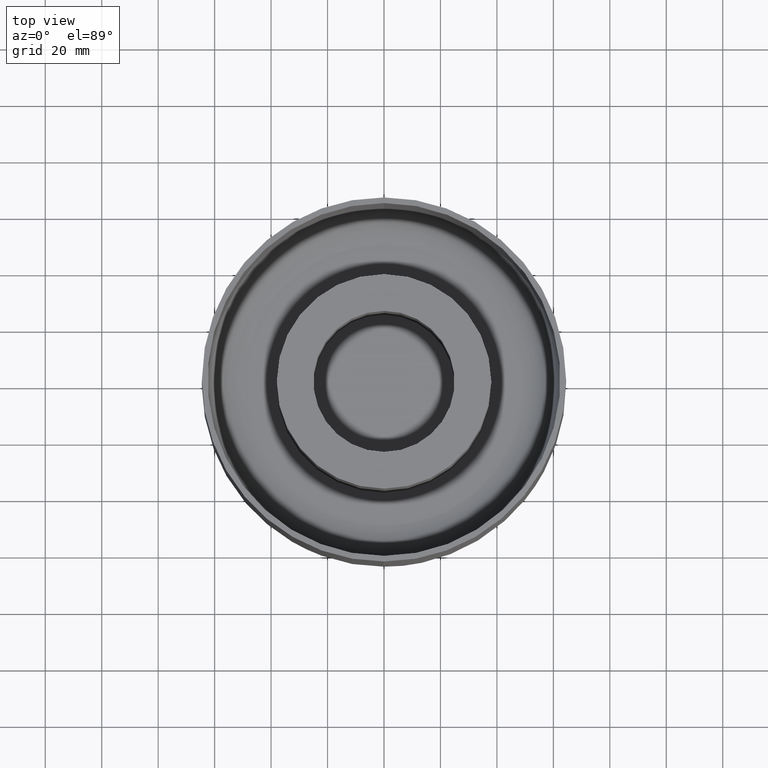
[diagram: clean part render]
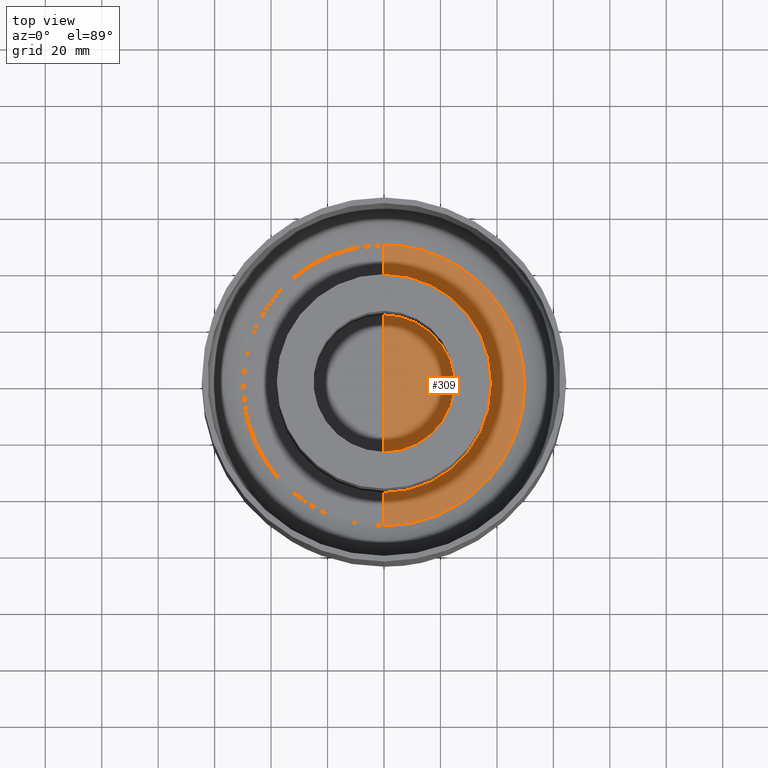
[diagram: same view with one face highlighted and labeled with its STEP entity id]
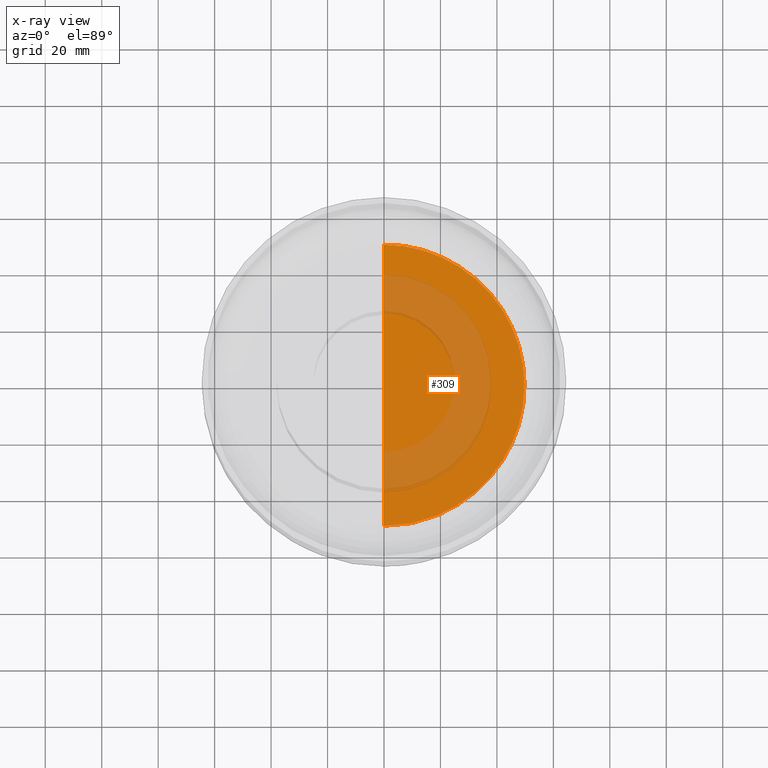
[diagram: x-ray of the same camera — body ghosted, the highlighted face saturated]
A machine part, top view. The second image highlights one B-rep face of the part: STEP entity #309.
The next image is the same camera in x-ray: the body ghosted, the highlighted face saturated — about 34% of this face is hidden behind the body in this view.
In plain terms, the highlighted planar face has unit normal (0, -0, -1).
Its self-contained STEP definition (entity closure, byte-faithful):
#27=PLANE('',#359);
#43=FACE_OUTER_BOUND('',#67,.T.);
#67=EDGE_LOOP('',(#239,#240));
#107=LINE('',#585,#121);
#121=VECTOR('',#421,304.8);
#134=B_SPLINE_CURVE_WITH_KNOTS('',3,(#558,#559,#560,#561,#562,#563,#564,
#565,#566,#567),.UNSPECIFIED.,.F.,.F.,(4,1,1,1,1,1,1,4),(0.,0.142857142857143,
0.285714285714286,0.428571428571429,0.571428571428571,0.714285714285714,
0.857142857142857,1.),.UNSPECIFIED.);
#149=VERTEX_POINT('',#551);
#150=VERTEX_POINT('',#557);
#180=EDGE_CURVE('',#150,#149,#134,.T.);
#183=EDGE_CURVE('',#150,#149,#107,.T.);
#239=ORIENTED_EDGE('',*,*,#180,.T.);
#240=ORIENTED_EDGE('',*,*,#183,.F.);
#309=ADVANCED_FACE('',(#43),#27,.F.);
#359=AXIS2_PLACEMENT_3D('',#584,#419,#420);
#419=DIRECTION('center_axis',(0.,-1.63087261263545E-15,-1.));
#420=DIRECTION('ref_axis',(0.,-1.,1.63087261263545E-15));
#421=DIRECTION('',(-3.23108914886517E-15,1.,-1.69973315944126E-15));
#551=CARTESIAN_POINT('',(-1.6081753276354E-13,49.7719268501219,-120.));
#557=CARTESIAN_POINT('',(0.,-49.7719268501218,-120.));
#558=CARTESIAN_POINT('Ctrl Pts',(3.17246229286638E-13,-49.7719268501218,
-120.));
#559=CARTESIAN_POINT('Ctrl Pts',(7.49665695852203,-49.8806489451313,-120.));
#560=CARTESIAN_POINT('Ctrl Pts',(22.3080964073354,-46.3232395066296,-120.));
#561=CARTESIAN_POINT('Ctrl Pts',(40.2480554854435,-32.1054278339562,-120.));
#562=CARTESIAN_POINT('Ctrl Pts',(50.1792377780183,-11.4487820170032,-120.));
#563=CARTESIAN_POINT('Ctrl Pts',(50.1792377780182,11.4487820170037,-120.));
#564=CARTESIAN_POINT('Ctrl Pts',(40.2480554854432,32.1054278339566,-120.));
#565=CARTESIAN_POINT('Ctrl Pts',(22.3080964073349,46.3232395066299,-120.));
#566=CARTESIAN_POINT('Ctrl Pts',(7.49665695852156,49.8806489451315,-120.));
#567=CARTESIAN_POINT('Ctrl Pts',(-1.56789034880256E-13,49.7719268501219,
-120.));
#584=CARTESIAN_POINT('Origin',(0.,3.58791974779803E-14,-120.));
#585=CARTESIAN_POINT('',(-1.15954550950414E-28,7.17663381937169E-14,-120.));